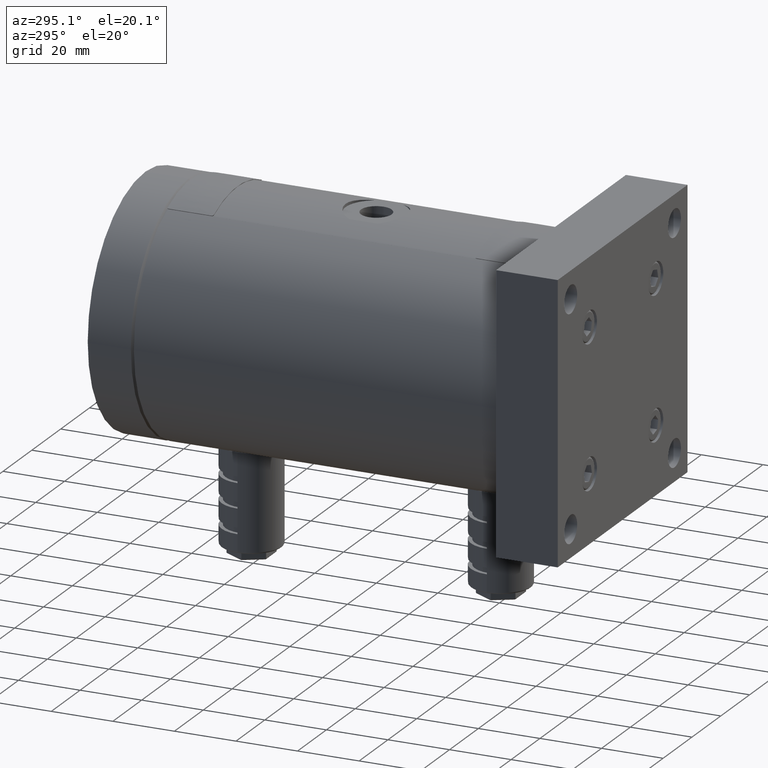
[diagram: clean part render]
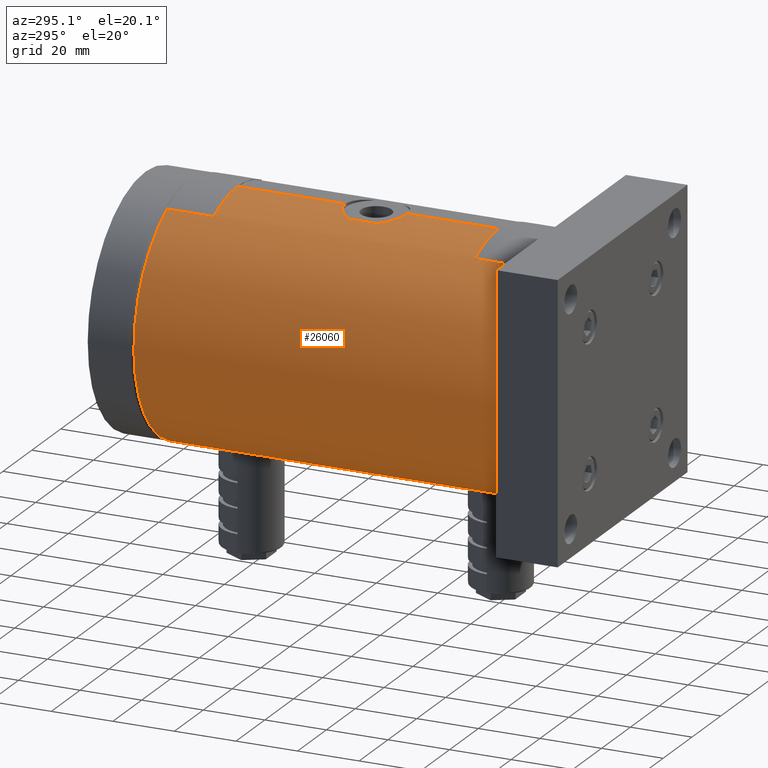
[diagram: same view with one face highlighted and labeled with its STEP entity id]
A machine part, auxiliary view. The second image highlights one B-rep face of the part: STEP entity #26060.
In plain terms, the highlighted cylindrical surface (partial cylindrical patch) has radius 40 mm, axis along (0, -1, 0).
Its self-contained STEP definition (entity closure, byte-faithful):
#173 = CARTESIAN_POINT ( 'NONE',  ( -16.94705028815755200, 139.5000000000000000, 36.23254733703745200 ) ) ;
#269 = LINE ( 'NONE', #27860, #18909 ) ;
#299 = CARTESIAN_POINT ( 'NONE',  ( 4.898587196589413000E-015, 20.00000000000000000, 40.00000000000000000 ) ) ;
#311 = EDGE_CURVE ( 'NONE', #17379, #25959, #27941, .T. ) ;
#383 = EDGE_CURVE ( 'NONE', #31561, #17379, #19418, .T. ) ;
#406 = VERTEX_POINT ( 'NONE', #23939 ) ;
#410 = DIRECTION ( 'NONE',  ( 0.0000000000000000000, -1.000000000000000000, 0.0000000000000000000 ) ) ;
#615 = CARTESIAN_POINT ( 'NONE',  ( -0.4576248742668007100, 90.00000000000001400, 40.00000000000000700 ) ) ;
#656 = VECTOR ( 'NONE', #1209, 1000.000000000000000 ) ;
#838 = CARTESIAN_POINT ( 'NONE',  ( -2.276489848800136600, 130.2480612659063600, -39.93758036770262300 ) ) ;
#1055 = ORIENTED_EDGE ( 'NONE', *, *, #14250, .F. ) ;
#1084 = DIRECTION ( 'NONE',  ( -0.0000000000000000000, 1.000000000000000000, -0.0000000000000000000 ) ) ;
#1209 = DIRECTION ( 'NONE',  ( 0.0000000000000000000, -1.000000000000000000, 0.0000000000000000000 ) ) ;
#1220 = CARTESIAN_POINT ( 'NONE',  ( -7.623772936783175200, 33.01280136235987300, -39.26801524574085500 ) ) ;
#1236 = EDGE_CURVE ( 'NONE', #17761, #5422, #6397, .T. ) ;
#1354 = CARTESIAN_POINT ( 'NONE',  ( -7.015596314812232700, 46.64061027501724500, -39.38122163865814700 ) ) ;
#1476 = CARTESIAN_POINT ( 'NONE',  ( -3.152490018273726300, 49.00099527208804100, -39.87799566606978600 ) ) ;
#1526 = ORIENTED_EDGE ( 'NONE', *, *, #13687, .F. ) ;
#1682 = CARTESIAN_POINT ( 'NONE',  ( -7.913580384309923900, 33.36937279225018900, -39.21030020162589100 ) ) ;
#1701 = EDGE_CURVE ( 'NONE', #12001, #7999, #18520, .T. ) ;
#2046 = CARTESIAN_POINT ( 'NONE',  ( -16.49281940641844800, 40.00000000000000000, 36.44155468729709900 ) ) ;
#2096 = AXIS2_PLACEMENT_3D ( 'NONE', #20078, #18177, #32982 ) ;
#2166 = CARTESIAN_POINT ( 'NONE',  ( 0.0000000000000000000, 20.00000000000000000, -40.00000000000000000 ) ) ;
#2273 = LINE ( 'NONE', #23097, #20469 ) ;
#2429 = CARTESIAN_POINT ( 'NONE',  ( 4.898587196650661800E-015, 70.00000000000000000, 40.00000000000000000 ) ) ;
#2894 = CARTESIAN_POINT ( 'NONE',  ( -16.89786330701693400, 20.23849119108059100, 36.25563024705888200 ) ) ;
#3016 = CARTESIAN_POINT ( 'NONE',  ( -16.89786330701693400, 125.2384911910806000, 36.25563024705888200 ) ) ;
#3094 = CARTESIAN_POINT ( 'NONE',  ( -8.888194417315590500, 84.58257569495579300, 39.00000000000000000 ) ) ;
#3140 = CARTESIAN_POINT ( 'NONE',  ( 4.898587196650661800E-015, 70.00000000000000000, 40.00000000000000000 ) ) ;
#3179 = ORIENTED_EDGE ( 'NONE', *, *, #18424, .F. ) ;
#3204 = B_SPLINE_CURVE_WITH_KNOTS ( 'NONE', 3,
 ( #32938, #33267, #17793, #30337, #17449, #2046 ),
 .UNSPECIFIED., .F., .F.,
 ( 4, 2, 4 ),
 ( 0.0000000000000000000, 0.0003905459783699529300, 0.0007810919567399058700 ),
 .UNSPECIFIED. ) ;
#3434 = CARTESIAN_POINT ( 'NONE',  ( -8.888194417315590500, 75.41742430504419300, 39.00000000000000000 ) ) ;
#3562 = VECTOR ( 'NONE', #24441, 1000.000000000000000 ) ;
#3634 = CARTESIAN_POINT ( 'NONE',  ( -8.888194417315590500, 115.9174243050442100, -39.00000000000000000 ) ) ;
#3962 = CARTESIAN_POINT ( 'NONE',  ( -4.426454224360608900, 48.47878267948896500, -39.75658861793080900 ) ) ;
#4175 = CIRCLE ( 'NONE', #7715, 40.00000000000000000 ) ;
#4177 = DIRECTION ( 'NONE',  ( 0.0000000000000000000, 0.0000000000000000000, 1.000000000000000000 ) ) ;
#4307 = ORIENTED_EDGE ( 'NONE', *, *, #1701, .F. ) ;
#4325 = EDGE_CURVE ( 'NONE', #10893, #26936, #4175, .T. ) ;
#4415 = CARTESIAN_POINT ( 'NONE',  ( -8.888194417315590500, 20.00000000000000000, -39.00000000000000000 ) ) ;
#4696 = CARTESIAN_POINT ( 'NONE',  ( -1.830573553049778900, 70.15829606894490700, 39.96067315453080900 ) ) ;
#4832 = VERTEX_POINT ( 'NONE', #14558 ) ;
#4892 = ORIENTED_EDGE ( 'NONE', *, *, #19037, .F. ) ;
#5243 = CARTESIAN_POINT ( 'NONE',  ( 4.898587196589413000E-015, 125.0000000000000000, 40.00000000000000000 ) ) ;
#5256 = CARTESIAN_POINT ( 'NONE',  ( -16.73046626480109100, 20.05414075459227200, 36.33318053125039900 ) ) ;
#5273 = CARTESIAN_POINT ( 'NONE',  ( -16.49281940641844800, 125.0000000000000000, 36.44155468729714900 ) ) ;
#5294 = CARTESIAN_POINT ( 'NONE',  ( -16.94705028815755600, 139.6320563332657800, 36.23254733703746000 ) ) ;
#5297 = VERTEX_POINT ( 'NONE', #3140 ) ;
#5299 = CARTESIAN_POINT ( 'NONE',  ( -8.888194417315590500, 44.08257569495585000, -39.00000000000000000 ) ) ;
#5313 = EDGE_CURVE ( 'NONE', #31688, #31561, #26416, .T. ) ;
#5419 = CARTESIAN_POINT ( 'NONE',  ( -8.888194417315590500, 20.00000000000000000, -39.00000000000000000 ) ) ;
#5422 = VERTEX_POINT ( 'NONE', #19299 ) ;
#5542 = CARTESIAN_POINT ( 'NONE',  ( 0.0000000000000000000, 20.00000000000000000, -40.00000000000000000 ) ) ;
#5554 = ORIENTED_EDGE ( 'NONE', *, *, #11316, .F. ) ;
#5582 = DIRECTION ( 'NONE',  ( 0.0000000000000000000, 1.000000000000000000, 0.0000000000000000000 ) ) ;
#5594 = CARTESIAN_POINT ( 'NONE',  ( -8.888194417315590500, 115.9174243050442100, -39.00000000000000000 ) ) ;
#5623 = CARTESIAN_POINT ( 'NONE',  ( -4.427115605292663700, 89.01312253337519600, 39.76204522458090900 ) ) ;
#5793 = CARTESIAN_POINT ( 'NONE',  ( -8.677520557029112100, 115.5088090734543200, -39.04801308279162700 ) ) ;
#6014 = ORIENTED_EDGE ( 'NONE', *, *, #12270, .T. ) ;
#6237 = CARTESIAN_POINT ( 'NONE',  ( -4.831232033113877800, 48.26726202979308800, -39.70908547172412300 ) ) ;
#6292 = VERTEX_POINT ( 'NONE', #33145 ) ;
#6397 = B_SPLINE_CURVE_WITH_KNOTS ( 'NONE', 3,
 ( #5273, #31195, #25389, #3016, #31405, #15922 ),
 .UNSPECIFIED., .F., .F.,
 ( 4, 2, 4 ),
 ( 0.0000000000000000000, 0.0003905460534147143500, 0.0007810921068294287100 ),
 .UNSPECIFIED. ) ;
#6570 = CARTESIAN_POINT ( 'NONE',  ( -3.582574804664356200, 48.84757686113545100, -39.84149838177184900 ) ) ;
#6698 = CARTESIAN_POINT ( 'NONE',  ( -0.4580858046900541700, 49.49999999999999300, -40.00000000000000000 ) ) ;
#6796 = CARTESIAN_POINT ( 'NONE',  ( -1.815754276317133700, 29.65566311601831000, -39.96132302075352500 ) ) ;
#6843 = VERTEX_POINT ( 'NONE', #15447 ) ;
#7196 = CARTESIAN_POINT ( 'NONE',  ( -4.831232033113884900, 71.23273797020694100, 39.70908547172410900 ) ) ;
#7422 = DIRECTION ( 'NONE',  ( 0.0000000000000000000, 0.0000000000000000000, -1.000000000000000000 ) ) ;
#7638 = VERTEX_POINT ( 'NONE', #13538 ) ;
#7642 = CARTESIAN_POINT ( 'NONE',  ( -7.015596314812241600, 72.85938972498279000, 39.38122163865815400 ) ) ;
#7659 = VERTEX_POINT ( 'NONE', #5594 ) ;
#7669 = CARTESIAN_POINT ( 'NONE',  ( -16.94705028815755200, 39.50000000000000000, 36.23254733703745200 ) ) ;
#7715 = AXIS2_PLACEMENT_3D ( 'NONE', #7985, #5582, #10685 ) ;
#7813 = DIRECTION ( 'NONE',  ( 0.0000000000000000000, -1.000000000000000000, 0.0000000000000000000 ) ) ;
#7985 = CARTESIAN_POINT ( 'NONE',  ( 0.0000000000000000000, 40.00000000000000000, 0.0000000000000000000 ) ) ;
#7999 = VERTEX_POINT ( 'NONE', #19388 ) ;
#8162 = DIRECTION ( 'NONE',  ( 0.0000000000000000000, -1.000000000000000000, 0.0000000000000000000 ) ) ;
#8178 = ORIENTED_EDGE ( 'NONE', *, *, #8682, .F. ) ;
#8488 = EDGE_CURVE ( 'NONE', #31688, #5422, #2273, .T. ) ;
#8592 = CARTESIAN_POINT ( 'NONE',  ( -7.944541937770190500, 126.6409999517477400, -39.20817632868311600 ) ) ;
#8618 = CARTESIAN_POINT ( 'NONE',  ( 0.0000000000000000000, 20.00000000000000000, -40.00000000000000000 ) ) ;
#8682 = EDGE_CURVE ( 'NONE', #7638, #25959, #27669, .T. ) ;
#8768 = CARTESIAN_POINT ( 'NONE',  ( -6.128463157435735500E-026, 110.5000000000000000, -40.00000000000000000 ) ) ;
#8879 = CARTESIAN_POINT ( 'NONE',  ( -5.605003572320107700, 47.79395089273597100, -39.60727467161499500 ) ) ;
#9054 = CARTESIAN_POINT ( 'NONE',  ( -5.974563797508700700, 128.5319021183439100, -39.55289914682276000 ) ) ;
#9207 = CARTESIAN_POINT ( 'NONE',  ( 0.0000000000000000000, 125.0000000000000000, 0.0000000000000000000 ) ) ;
#9770 = ORIENTED_EDGE ( 'NONE', *, *, #311, .T. ) ;
#10326 = ORIENTED_EDGE ( 'NONE', *, *, #4325, .T. ) ;
#10356 = DIRECTION ( 'NONE',  ( 0.0000000000000000000, -1.000000000000000000, 0.0000000000000000000 ) ) ;
#10415 = LINE ( 'NONE', #8618, #656 ) ;
#10473 = CARTESIAN_POINT ( 'NONE',  ( -16.61312775298391400, 20.00000000000000000, 36.38710520373319900 ) ) ;
#10603 = VECTOR ( 'NONE', #1084, 1000.000000000000000 ) ;
#10685 = DIRECTION ( 'NONE',  ( 0.0000000000000000000, 0.0000000000000000000, 1.000000000000000000 ) ) ;
#10837 = CARTESIAN_POINT ( 'NONE',  ( -0.9122863123777309500, 89.96873442125601600, 39.99214966521826400 ) ) ;
#10893 = VERTEX_POINT ( 'NONE', #29244 ) ;
#11052 = CARTESIAN_POINT ( 'NONE',  ( -6.675154073597265200, 87.45974773576770600, 39.44069986287573200 ) ) ;
#11213 = VERTEX_POINT ( 'NONE', #3094 ) ;
#11274 = CARTESIAN_POINT ( 'NONE',  ( -0.4580858046900561100, 130.4999999999999700, -40.00000000000000700 ) ) ;
#11316 = EDGE_CURVE ( 'NONE', #15055, #4832, #27228, .T. ) ;
#11498 = CARTESIAN_POINT ( 'NONE',  ( -7.015596314812264600, 127.6406102750172500, -39.38122163865815400 ) ) ;
#11758 = CARTESIAN_POINT ( 'NONE',  ( -6.130928347764551100E-026, 29.50000000000000000, -40.00000000000000000 ) ) ;
#11943 = CIRCLE ( 'NONE', #2096, 40.00000000000000000 ) ;
#12001 = VERTEX_POINT ( 'NONE', #5243 ) ;
#12005 = CARTESIAN_POINT ( 'NONE',  ( -0.9122863123777339400, 29.53126557874399100, -39.99214966521826400 ) ) ;
#12270 = EDGE_CURVE ( 'NONE', #25715, #10893, #3204, .T. ) ;
#12290 = CARTESIAN_POINT ( 'NONE',  ( 6.101346063818763200E-026, 130.5000000000000000, -40.00000000000000000 ) ) ;
#12386 = DIRECTION ( 'NONE',  ( 0.0000000000000000000, -1.000000000000000000, 0.0000000000000000000 ) ) ;
#12392 = CARTESIAN_POINT ( 'NONE',  ( -5.974563797508686500, 71.96809788165609200, 39.55289914682276000 ) ) ;
#12475 = EDGE_CURVE ( 'NONE', #7638, #7659, #19871, .T. ) ;
#12583 = DIRECTION ( 'NONE',  ( 0.0000000000000000000, -1.000000000000000000, 0.0000000000000000000 ) ) ;
#13363 = AXIS2_PLACEMENT_3D ( 'NONE', #33532, #10356, #7422 ) ;
#13456 = CARTESIAN_POINT ( 'NONE',  ( -5.972798125681539000, 88.03313144031697800, 39.55315626002004600 ) ) ;
#13518 = CARTESIAN_POINT ( 'NONE',  ( -5.972798125681545200, 112.4668685596830200, -39.55315626002003900 ) ) ;
#13538 = CARTESIAN_POINT ( 'NONE',  ( -8.888194417315590500, 125.0825756949557900, -39.00000000000000000 ) ) ;
#13571 = CARTESIAN_POINT ( 'NONE',  ( -1.815754276317131300, 89.84433688398169700, 39.96132302075353200 ) ) ;
#13634 = CARTESIAN_POINT ( 'NONE',  ( -2.266955794406638100, 110.7494910926430100, -39.93817469168590900 ) ) ;
#13687 = EDGE_CURVE ( 'NONE', #25715, #6292, #28268, .T. ) ;
#13787 = VECTOR ( 'NONE', #22851, 1000.000000000000000 ) ;
#13971 = CARTESIAN_POINT ( 'NONE',  ( -7.005301154797050100, 113.3493765526055900, -39.38305080693930900 ) ) ;
#14013 = ORIENTED_EDGE ( 'NONE', *, *, #33477, .T. ) ;
#14038 = CARTESIAN_POINT ( 'NONE',  ( -8.888194417315590500, 20.00000000000000000, 39.00000000000000000 ) ) ;
#14199 = CARTESIAN_POINT ( 'NONE',  ( -8.888194417315590500, 44.08257569495585000, -39.00000000000000000 ) ) ;
#14250 = EDGE_CURVE ( 'NONE', #6843, #25487, #32021, .T. ) ;
#14307 = CARTESIAN_POINT ( 'NONE',  ( -8.466395686721240200, 44.90068092050099600, -39.09612895185896500 ) ) ;
#14558 = CARTESIAN_POINT ( 'NONE',  ( 6.130928347764551100E-026, 49.50000000000000000, -40.00000000000000000 ) ) ;
#14637 = CARTESIAN_POINT ( 'NONE',  ( -5.597780261123926200, 31.20097663913176000, -39.60832935638958900 ) ) ;
#14690 = CIRCLE ( 'NONE', #33123, 40.00000000000000000 ) ;
#15055 = VERTEX_POINT ( 'NONE', #5299 ) ;
#15255 = CARTESIAN_POINT ( 'NONE',  ( -2.276489848800124600, 70.25193873409358500, 39.93758036770263000 ) ) ;
#15361 = CARTESIAN_POINT ( 'NONE',  ( -7.944541937770173600, 73.85900004825221300, 39.20817632868311600 ) ) ;
#15415 = ORIENTED_EDGE ( 'NONE', *, *, #8488, .F. ) ;
#15447 = CARTESIAN_POINT ( 'NONE',  ( -6.130928347764551100E-026, 29.50000000000000000, -40.00000000000000000 ) ) ;
#15480 = CARTESIAN_POINT ( 'NONE',  ( -3.582574804664362400, 70.65242313886453500, 39.84149838177186400 ) ) ;
#15792 = DIRECTION ( 'NONE',  ( 0.0000000000000000000, -1.000000000000000000, 0.0000000000000000000 ) ) ;
#15922 = CARTESIAN_POINT ( 'NONE',  ( -16.94705028815755200, 125.5000000000000000, 36.23254733703745200 ) ) ;
#15975 = DIRECTION ( 'NONE',  ( 0.0000000000000000000, 0.0000000000000000000, -1.000000000000000000 ) ) ;
#16168 = CARTESIAN_POINT ( 'NONE',  ( 4.898587196528142200E-015, 90.00000000000000000, 40.00000000000000000 ) ) ;
#16497 = CARTESIAN_POINT ( 'NONE',  ( -4.426454224360609800, 129.4787826794889700, -39.75658861793081700 ) ) ;
#16740 = CARTESIAN_POINT ( 'NONE',  ( -8.888194417315590500, 34.91742430504415000, -39.00000000000000000 ) ) ;
#16828 = ORIENTED_EDGE ( 'NONE', *, *, #25142, .T. ) ;
#16866 = ORIENTED_EDGE ( 'NONE', *, *, #32834, .F. ) ;
#17102 = CARTESIAN_POINT ( 'NONE',  ( 0.0000000000000000000, 140.0000000000000000, -40.00000000000000000 ) ) ;
#17207 = CARTESIAN_POINT ( 'NONE',  ( -7.005301154797024300, 32.34937655260556300, -39.38305080693930900 ) ) ;
#17379 = VERTEX_POINT ( 'NONE', #17102 ) ;
#17449 = CARTESIAN_POINT ( 'NONE',  ( -16.61312782736975900, 40.00000000000000700, 36.38710517006745000 ) ) ;
#17722 = CARTESIAN_POINT ( 'NONE',  ( -4.426454224360614200, 71.02121732051107000, 39.75658861793080900 ) ) ;
#17761 = VERTEX_POINT ( 'NONE', #27674 ) ;
#17793 = CARTESIAN_POINT ( 'NONE',  ( -16.89803261603200800, 39.76119005295370100, 36.25555116792206400 ) ) ;
#17837 = CARTESIAN_POINT ( 'NONE',  ( -8.466395686721240200, 74.59931907949904000, 39.09612895185895800 ) ) ;
#17942 = CARTESIAN_POINT ( 'NONE',  ( -0.4580858046900488400, 69.99999999999998600, 40.00000000000001400 ) ) ;
#18177 = DIRECTION ( 'NONE',  ( 0.0000000000000000000, -1.000000000000000000, 0.0000000000000000000 ) ) ;
#18272 = ORIENTED_EDGE ( 'NONE', *, *, #5313, .T. ) ;
#18273 = CARTESIAN_POINT ( 'NONE',  ( -16.94705028815755200, 20.50000000000000000, 36.23254733703745200 ) ) ;
#18309 = CARTESIAN_POINT ( 'NONE',  ( -16.49281940641844800, 140.0000000000000000, 36.44155468729714900 ) ) ;
#18424 = EDGE_CURVE ( 'NONE', #17761, #12001, #14690, .T. ) ;
#18520 = LINE ( 'NONE', #299, #18896 ) ;
#18521 = CARTESIAN_POINT ( 'NONE',  ( -2.266955794406631900, 89.75050890735700200, 39.93817469168590900 ) ) ;
#18555 = VERTEX_POINT ( 'NONE', #30784 ) ;
#18618 = CARTESIAN_POINT ( 'NONE',  ( 4.898587196589413000E-015, 40.00000000000000000, 40.00000000000000000 ) ) ;
#18635 = CARTESIAN_POINT ( 'NONE',  ( -7.005301154797040300, 87.15062344739440900, 39.38305080693930900 ) ) ;
#18896 = VECTOR ( 'NONE', #7813, 1000.000000000000000 ) ;
#18909 = VECTOR ( 'NONE', #12386, 1000.000000000000000 ) ;
#19037 = EDGE_CURVE ( 'NONE', #21678, #5297, #20957, .T. ) ;
#19132 = CARTESIAN_POINT ( 'NONE',  ( -7.913580384309951500, 114.3693727922502300, -39.21030020162588400 ) ) ;
#19299 = CARTESIAN_POINT ( 'NONE',  ( -16.94705028815755200, 125.5000000000000000, 36.23254733703745200 ) ) ;
#19347 = CARTESIAN_POINT ( 'NONE',  ( -8.888194417315590500, 34.91742430504415000, -39.00000000000000000 ) ) ;
#19360 = CYLINDRICAL_SURFACE ( 'NONE', #13363, 40.00000000000000000 ) ;
#19388 = CARTESIAN_POINT ( 'NONE',  ( 4.898587196528142200E-015, 90.00000000000000000, 40.00000000000000000 ) ) ;
#19418 = CIRCLE ( 'NONE', #20754, 40.00000000000000000 ) ;
#19481 = CARTESIAN_POINT ( 'NONE',  ( -6.679007288837303800, 46.95638825738151900, -39.44005711361092600 ) ) ;
#19598 = CARTESIAN_POINT ( 'NONE',  ( -1.830573553049780000, 49.34170393105514300, -39.96067315453081600 ) ) ;
#19793 = CARTESIAN_POINT ( 'NONE',  ( -8.677520557029096100, 34.50880907345422300, -39.04801308279161300 ) ) ;
#19871 = LINE ( 'NONE', #5419, #27558 ) ;
#20078 = CARTESIAN_POINT ( 'NONE',  ( 0.0000000000000000000, 20.00000000000000000, 0.0000000000000000000 ) ) ;
#20190 = CARTESIAN_POINT ( 'NONE',  ( -0.9224897157960957300, 70.03209407528736100, 39.99194182858112600 ) ) ;
#20284 = DIRECTION ( 'NONE',  ( 0.0000000000000000000, -1.000000000000000000, 0.0000000000000000000 ) ) ;
#20310 = EDGE_CURVE ( 'NONE', #406, #4832, #269, .T. ) ;
#20368 = ORIENTED_EDGE ( 'NONE', *, *, #1236, .T. ) ;
#20469 = VECTOR ( 'NONE', #20284, 1000.000000000000000 ) ;
#20754 = AXIS2_PLACEMENT_3D ( 'NONE', #20918, #8162, #15975 ) ;
#20865 = ORIENTED_EDGE ( 'NONE', *, *, #27876, .F. ) ;
#20886 = ORIENTED_EDGE ( 'NONE', *, *, #20310, .T. ) ;
#20903 = VERTEX_POINT ( 'NONE', #5542 ) ;
#20918 = CARTESIAN_POINT ( 'NONE',  ( 0.0000000000000000000, 140.0000000000000000, 0.0000000000000000000 ) ) ;
#20957 = B_SPLINE_CURVE_WITH_KNOTS ( 'NONE', 3,
 ( #25698, #17837, #15361, #7642, #25590, #12392, #28200, #7196, #17722, #15480, #23000, #15255, #4696, #20190, #17942, #2429 ),
 .UNSPECIFIED., .F., .F.,
 ( 4, 2, 2, 2, 2, 2, 2, 4 ),
 ( 0.0000000000000000000, 0.002736634979796481700, 0.004104952469694722600, 0.005473269959592963500, 0.006841587449491204300, 0.008209904939389445200, 0.009578222429287686100, 0.01094653991918592700 ),
 .UNSPECIFIED. ) ;
#21100 = CARTESIAN_POINT ( 'NONE',  ( -16.73075583459030800, 139.9456722866064000, 36.33304702313884600 ) ) ;
#21494 = ORIENTED_EDGE ( 'NONE', *, *, #29009, .F. ) ;
#21554 = CARTESIAN_POINT ( 'NONE',  ( -6.679007288837320600, 127.9563882573815600, -39.44005711361093300 ) ) ;
#21574 = EDGE_CURVE ( 'NONE', #18555, #6292, #30716, .T. ) ;
#21582 = ORIENTED_EDGE ( 'NONE', *, *, #12475, .T. ) ;
#21617 = CARTESIAN_POINT ( 'NONE',  ( -5.597780261123956400, 112.2009766391318100, -39.60832935638956800 ) ) ;
#21678 = VERTEX_POINT ( 'NONE', #3434 ) ;
#21723 = CARTESIAN_POINT ( 'NONE',  ( -0.9122863123777398300, 110.5312655787439700, -39.99214966521825700 ) ) ;
#22170 = CARTESIAN_POINT ( 'NONE',  ( -0.9224897157960995100, 49.46790592471263900, -39.99194182858111900 ) ) ;
#22371 = CARTESIAN_POINT ( 'NONE',  ( -8.440347930246037600, 34.11763330162944600, -39.10029313466778000 ) ) ;
#22610 = B_SPLINE_CURVE_WITH_KNOTS ( 'NONE', 3,
 ( #16168, #615, #10837, #13571, #18521, #23915, #5623, #28918, #13456, #11052, #18635, #29137, #31534, #31763, #23697, #26517 ),
 .UNSPECIFIED., .F., .F.,
 ( 4, 2, 2, 2, 2, 2, 2, 4 ),
 ( 0.01094653991918589400, 0.01231348059462425900, 0.01368042127006262300, 0.01641430262093935400, 0.01778124329637771600, 0.01914818397181608200, 0.02051512464725444700, 0.02188206532269280900 ),
 .UNSPECIFIED. ) ;
#22851 = DIRECTION ( 'NONE',  ( 0.0000000000000000000, -1.000000000000000000, 0.0000000000000000000 ) ) ;
#23000 = CARTESIAN_POINT ( 'NONE',  ( -3.152490018273733400, 70.49900472791196600, 39.87799566606979300 ) ) ;
#23097 = CARTESIAN_POINT ( 'NONE',  ( -16.94705028815755200, 140.0000000000000000, 36.23254733703745200 ) ) ;
#23372 = CARTESIAN_POINT ( 'NONE',  ( -16.61312782736975900, 140.0000000000000000, 36.38710517006745000 ) ) ;
#23400 = LINE ( 'NONE', #31267, #31501 ) ;
#23482 = CARTESIAN_POINT ( 'NONE',  ( -16.89803261603199400, 139.7611900529537600, 36.25555116792207900 ) ) ;
#23613 = ORIENTED_EDGE ( 'NONE', *, *, #383, .T. ) ;
#23697 = CARTESIAN_POINT ( 'NONE',  ( -8.677520557029099600, 84.99119092654575500, 39.04801308279162700 ) ) ;
#23915 = CARTESIAN_POINT ( 'NONE',  ( -3.595054090188607400, 89.37665378445774400, 39.84800034127529500 ) ) ;
#23939 = CARTESIAN_POINT ( 'NONE',  ( -6.128463157435735500E-026, 110.5000000000000000, -40.00000000000000000 ) ) ;
#24090 = CARTESIAN_POINT ( 'NONE',  ( -3.595054090188612800, 111.1233462155422800, -39.84800034127530200 ) ) ;
#24147 = CARTESIAN_POINT ( 'NONE',  ( -1.830573553049803700, 130.3417039310550900, -39.96067315453080900 ) ) ;
#24265 = CARTESIAN_POINT ( 'NONE',  ( -5.605003572320137000, 128.7939508927359200, -39.60727467161498800 ) ) ;
#24441 = DIRECTION ( 'NONE',  ( 0.0000000000000000000, -1.000000000000000000, 0.0000000000000000000 ) ) ;
#24665 = CARTESIAN_POINT ( 'NONE',  ( -5.974563797508679400, 47.53190211834391500, -39.55289914682275300 ) ) ;
#24774 = CARTESIAN_POINT ( 'NONE',  ( 6.130928347764551100E-026, 49.50000000000000000, -40.00000000000000000 ) ) ;
#24790 = CARTESIAN_POINT ( 'NONE',  ( -16.94705028815755200, 40.00000000000000000, 36.23254733703745200 ) ) ;
#25142 = EDGE_CURVE ( 'NONE', #15055, #25487, #30432, .T. ) ;
#25389 = CARTESIAN_POINT ( 'NONE',  ( -16.73046626480107000, 125.0541407545922800, 36.33318053125041300 ) ) ;
#25487 = VERTEX_POINT ( 'NONE', #16740 ) ;
#25497 = EDGE_CURVE ( 'NONE', #21678, #11213, #31249, .T. ) ;
#25590 = CARTESIAN_POINT ( 'NONE',  ( -6.679007288837315300, 72.54361174261850900, 39.44005711361092600 ) ) ;
#25687 = ORIENTED_EDGE ( 'NONE', *, *, #25497, .T. ) ;
#25698 = CARTESIAN_POINT ( 'NONE',  ( -8.888194417315590500, 75.41742430504419300, 39.00000000000000000 ) ) ;
#25715 = VERTEX_POINT ( 'NONE', #7669 ) ;
#25959 = VERTEX_POINT ( 'NONE', #12290 ) ;
#26060 = ADVANCED_FACE ( 'NONE', ( #26207 ), #19360, .T. ) ;
#26207 = FACE_OUTER_BOUND ( 'NONE', #29200, .T. ) ;
#26215 = EDGE_CURVE ( 'NONE', #5297, #26936, #23400, .T. ) ;
#26364 = CARTESIAN_POINT ( 'NONE',  ( -8.440347930246060700, 115.1176333016294800, -39.10029313466778700 ) ) ;
#26416 = B_SPLINE_CURVE_WITH_KNOTS ( 'NONE', 3,
 ( #173, #5294, #23482, #21100, #23372, #18309 ),
 .UNSPECIFIED., .F., .F.,
 ( 4, 2, 4 ),
 ( 0.0000000000000000000, 0.0003905459783699558600, 0.0007810919567399117200 ),
 .UNSPECIFIED. ) ;
#26468 = CARTESIAN_POINT ( 'NONE',  ( -4.427115605292674300, 111.4868774666248300, -39.76204522458091600 ) ) ;
#26517 = CARTESIAN_POINT ( 'NONE',  ( -8.888194417315590500, 84.58257569495579300, 39.00000000000000000 ) ) ;
#26583 = CARTESIAN_POINT ( 'NONE',  ( -0.4576248742668069200, 110.4999999999999900, -40.00000000000000700 ) ) ;
#26802 = CARTESIAN_POINT ( 'NONE',  ( -1.815754276317142600, 110.6556631160183200, -39.96132302075351800 ) ) ;
#26853 = CARTESIAN_POINT ( 'NONE',  ( -3.582574804664364600, 129.8475768611354500, -39.84149838177186400 ) ) ;
#26936 = VERTEX_POINT ( 'NONE', #18618 ) ;
#26965 = CARTESIAN_POINT ( 'NONE',  ( -8.888194417315590500, 125.0825756949557900, -39.00000000000000000 ) ) ;
#27006 = CARTESIAN_POINT ( 'NONE',  ( -6.675154073597248300, 32.04025226423225800, -39.44069986287573200 ) ) ;
#27228 = B_SPLINE_CURVE_WITH_KNOTS ( 'NONE', 3,
 ( #14199, #14307, #32388, #1354, #19481, #24665, #8879, #6237, #3962, #6570, #1476, #27259, #19598, #22170, #6698, #24774 ),
 .UNSPECIFIED., .F., .F.,
 ( 4, 2, 2, 2, 2, 2, 2, 4 ),
 ( 0.0000000000000000000, 0.002736634979796483500, 0.004104952469694718300, 0.005473269959592953100, 0.006841587449491188700, 0.008209904939389422700, 0.009578222429287658300, 0.01094653991918589200 ),
 .UNSPECIFIED. ) ;
#27259 = CARTESIAN_POINT ( 'NONE',  ( -2.276489848800122000, 49.24806126590641500, -39.93758036770263700 ) ) ;
#27558 = VECTOR ( 'NONE', #410, 1000.000000000000000 ) ;
#27596 = DIRECTION ( 'NONE',  ( 0.0000000000000000000, 1.000000000000000000, 0.0000000000000000000 ) ) ;
#27669 = B_SPLINE_CURVE_WITH_KNOTS ( 'NONE', 3,
 ( #26965, #29254, #8592, #11498, #21554, #9054, #24265, #29592, #16497, #26853, #32222, #838, #24147, #29703, #11274, #31997 ),
 .UNSPECIFIED., .F., .F.,
 ( 4, 2, 2, 2, 2, 2, 2, 4 ),
 ( 0.0000000000000000000, 0.002736634979796423600, 0.004104952469694665400, 0.005473269959592908000, 0.006841587449491149700, 0.008209904939389393200, 0.009578222429287635800, 0.01094653991918587800 ),
 .UNSPECIFIED. ) ;
#27674 = CARTESIAN_POINT ( 'NONE',  ( -16.49281940641844800, 125.0000000000000000, 36.44155468729714900 ) ) ;
#27860 = CARTESIAN_POINT ( 'NONE',  ( 0.0000000000000000000, 20.00000000000000000, -40.00000000000000000 ) ) ;
#27876 = EDGE_CURVE ( 'NONE', #18555, #20903, #11943, .T. ) ;
#27941 = LINE ( 'NONE', #2166, #13787 ) ;
#28200 = CARTESIAN_POINT ( 'NONE',  ( -5.605003572320119300, 71.70604910726406400, 39.60727467161498800 ) ) ;
#28268 = LINE ( 'NONE', #24790, #3562 ) ;
#28438 = CARTESIAN_POINT ( 'NONE',  ( -16.94705028815755600, 20.36794368501182000, 36.23254733703746000 ) ) ;
#28763 = CARTESIAN_POINT ( 'NONE',  ( -16.94705028815755200, 139.5000000000000000, 36.23254733703745200 ) ) ;
#28918 = CARTESIAN_POINT ( 'NONE',  ( -5.597780261123937800, 88.29902336086820500, 39.60832935638958200 ) ) ;
#29009 = EDGE_CURVE ( 'NONE', #7999, #11213, #22610, .T. ) ;
#29137 = CARTESIAN_POINT ( 'NONE',  ( -7.623772936783193900, 86.48719863764012000, 39.26801524574084800 ) ) ;
#29174 = VECTOR ( 'NONE', #12583, 1000.000000000000000 ) ;
#29200 = EDGE_LOOP ( 'NONE', ( #4307, #3179, #20368, #15415, #18272, #23613, #9770, #8178, #21582, #16866, #20886, #5554, #16828, #1055, #14013, #20865, #30383, #1526, #6014, #10326, #30504, #4892, #25687, #21494 ) ) ;
#29244 = CARTESIAN_POINT ( 'NONE',  ( -16.49281940641844800, 40.00000000000000000, 36.44155468729709900 ) ) ;
#29254 = CARTESIAN_POINT ( 'NONE',  ( -8.466395686721243800, 125.9006809205009500, -39.09612895185896500 ) ) ;
#29432 = CARTESIAN_POINT ( 'NONE',  ( -6.675154073597277600, 113.0402522642323100, -39.44069986287573200 ) ) ;
#29573 = CARTESIAN_POINT ( 'NONE',  ( -16.49281940641844800, 140.0000000000000000, 36.44155468729714900 ) ) ;
#29592 = CARTESIAN_POINT ( 'NONE',  ( -4.831232033113914200, 129.2672620297930500, -39.70908547172410900 ) ) ;
#29627 = CARTESIAN_POINT ( 'NONE',  ( -0.4576248742668022600, 29.49999999999999300, -40.00000000000000000 ) ) ;
#29703 = CARTESIAN_POINT ( 'NONE',  ( -0.9224897157961274900, 130.4679059247126000, -39.99194182858110500 ) ) ;
#29744 = CARTESIAN_POINT ( 'NONE',  ( -3.595054090188594100, 30.12334621554223400, -39.84800034127530200 ) ) ;
#30061 = B_SPLINE_CURVE_WITH_KNOTS ( 'NONE', 3,
 ( #8768, #26583, #21723, #26802, #13634, #24090, #26468, #21617, #13518, #29432, #13971, #32059, #19132, #26364, #5793, #3634 ),
 .UNSPECIFIED., .F., .F.,
 ( 4, 2, 2, 2, 2, 2, 2, 4 ),
 ( 0.01094653991918589900, 0.01231348059462425100, 0.01368042127006260200, 0.01641430262093930600, 0.01778124329637766100, 0.01914818397181601200, 0.02051512464725436400, 0.02188206532269271500 ),
 .UNSPECIFIED. ) ;
#30092 = CARTESIAN_POINT ( 'NONE',  ( -2.266955794406618100, 29.74949109264299800, -39.93817469168591600 ) ) ;
#30337 = CARTESIAN_POINT ( 'NONE',  ( -16.73075583459030500, 39.94567228660640300, 36.33304702313883900 ) ) ;
#30383 = ORIENTED_EDGE ( 'NONE', *, *, #21574, .T. ) ;
#30432 = LINE ( 'NONE', #4415, #29174 ) ;
#30504 = ORIENTED_EDGE ( 'NONE', *, *, #26215, .F. ) ;
#30716 = B_SPLINE_CURVE_WITH_KNOTS ( 'NONE', 3,
 ( #33549, #10473, #5256, #2894, #28438, #18273 ),
 .UNSPECIFIED., .F., .F.,
 ( 4, 2, 4 ),
 ( 0.0000000000000000000, 0.0003905460534146451800, 0.0007810921068292903600 ),
 .UNSPECIFIED. ) ;
#30784 = CARTESIAN_POINT ( 'NONE',  ( -16.49281940641844800, 20.00000000000000000, 36.44155468729709900 ) ) ;
#31195 = CARTESIAN_POINT ( 'NONE',  ( -16.61312775298392800, 125.0000000000000300, 36.38710520373324200 ) ) ;
#31249 = LINE ( 'NONE', #14038, #10603 ) ;
#31267 = CARTESIAN_POINT ( 'NONE',  ( 4.898587196589413000E-015, 20.00000000000000000, 40.00000000000000000 ) ) ;
#31405 = CARTESIAN_POINT ( 'NONE',  ( -16.94705028815755200, 125.3679436850118100, 36.23254733703746000 ) ) ;
#31501 = VECTOR ( 'NONE', #15792, 1000.000000000000000 ) ;
#31534 = CARTESIAN_POINT ( 'NONE',  ( -7.913580384309941700, 86.13062720774979700, 39.21030020162589800 ) ) ;
#31561 = VERTEX_POINT ( 'NONE', #29573 ) ;
#31688 = VERTEX_POINT ( 'NONE', #28763 ) ;
#31763 = CARTESIAN_POINT ( 'NONE',  ( -8.440347930246053600, 85.38236669837053200, 39.10029313466779400 ) ) ;
#31997 = CARTESIAN_POINT ( 'NONE',  ( 6.101346063818763200E-026, 130.5000000000000000, -40.00000000000000000 ) ) ;
#32021 = B_SPLINE_CURVE_WITH_KNOTS ( 'NONE', 3,
 ( #11758, #29627, #12005, #6796, #30092, #29744, #32254, #14637, #32694, #27006, #17207, #1220, #1682, #22371, #19793, #19347 ),
 .UNSPECIFIED., .F., .F.,
 ( 4, 2, 2, 2, 2, 2, 2, 4 ),
 ( 0.01094653991918590600, 0.01231348059462425900, 0.01368042127006261300, 0.01641430262093931900, 0.01778124329637767500, 0.01914818397181603000, 0.02051512464725438800, 0.02188206532269274300 ),
 .UNSPECIFIED. ) ;
#32059 = CARTESIAN_POINT ( 'NONE',  ( -7.623772936783198300, 114.0128013623598700, -39.26801524574085500 ) ) ;
#32222 = CARTESIAN_POINT ( 'NONE',  ( -3.152490018273737000, 130.0009952720880600, -39.87799566606979300 ) ) ;
#32254 = CARTESIAN_POINT ( 'NONE',  ( -4.427115605292653900, 30.48687746662481500, -39.76204522458089500 ) ) ;
#32388 = CARTESIAN_POINT ( 'NONE',  ( -7.944541937770168300, 45.64099995174779400, -39.20817632868313000 ) ) ;
#32694 = CARTESIAN_POINT ( 'NONE',  ( -5.972798125681525700, 31.46686855968303200, -39.55315626002004600 ) ) ;
#32834 = EDGE_CURVE ( 'NONE', #406, #7659, #30061, .T. ) ;
#32938 = CARTESIAN_POINT ( 'NONE',  ( -16.94705028815755200, 39.50000000000000000, 36.23254733703745200 ) ) ;
#32982 = DIRECTION ( 'NONE',  ( 0.0000000000000000000, 0.0000000000000000000, -1.000000000000000000 ) ) ;
#33123 = AXIS2_PLACEMENT_3D ( 'NONE', #9207, #27596, #4177 ) ;
#33145 = CARTESIAN_POINT ( 'NONE',  ( -16.94705028815755200, 20.50000000000000000, 36.23254733703745200 ) ) ;
#33267 = CARTESIAN_POINT ( 'NONE',  ( -16.94705028815755600, 39.63205633326575800, 36.23254733703744500 ) ) ;
#33477 = EDGE_CURVE ( 'NONE', #6843, #20903, #10415, .T. ) ;
#33532 = CARTESIAN_POINT ( 'NONE',  ( 0.0000000000000000000, 20.00000000000000000, 0.0000000000000000000 ) ) ;
#33549 = CARTESIAN_POINT ( 'NONE',  ( -16.49281940641844800, 20.00000000000000000, 36.44155468729709900 ) ) ;